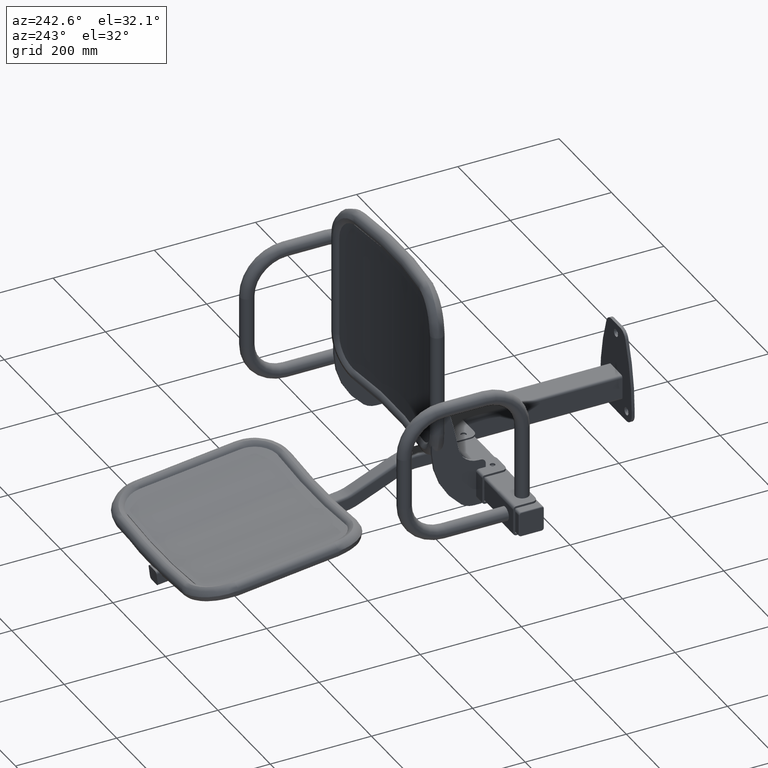
[diagram: clean part render]
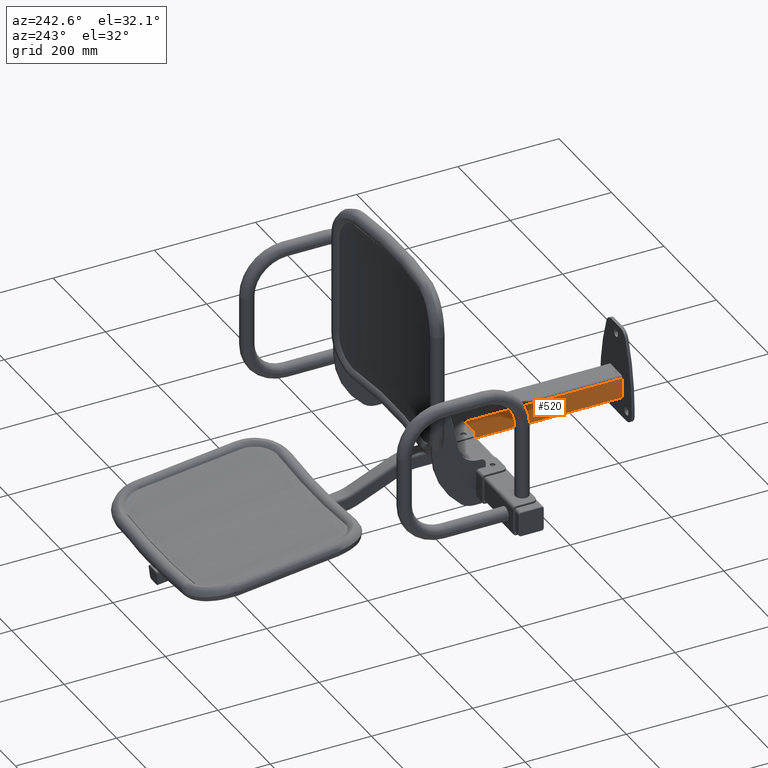
[diagram: same view with one face highlighted and labeled with its STEP entity id]
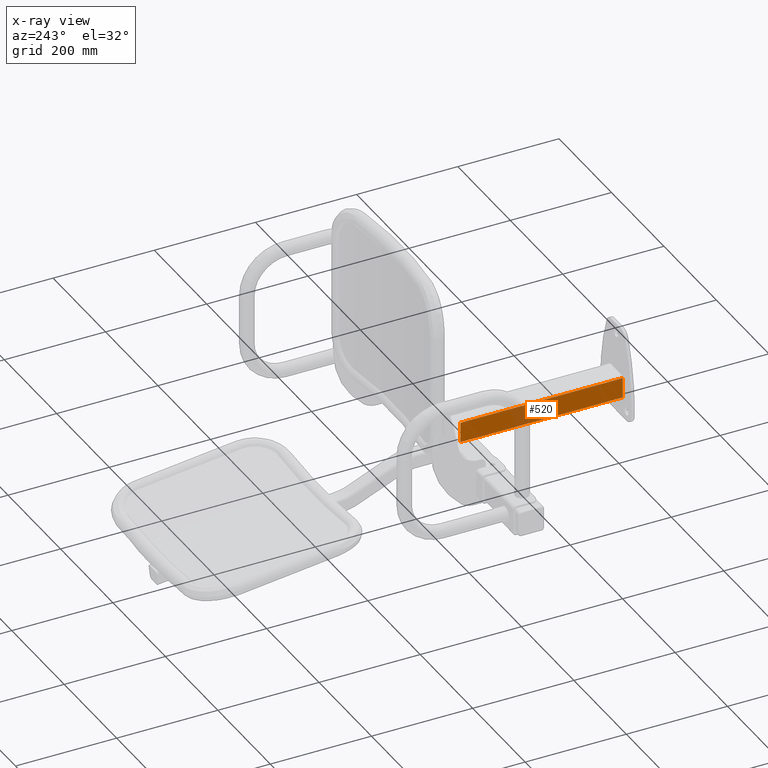
[diagram: x-ray of the same camera — body ghosted, the highlighted face saturated]
A machine part, auxiliary view. The second image highlights one B-rep face of the part: STEP entity #520.
The next image is the same camera in x-ray: the body ghosted, the highlighted face saturated — about 9% of this face is hidden behind the body in this view.
In plain terms, the highlighted planar face has unit normal (1, 0, 0).
Its self-contained STEP definition (entity closure, byte-faithful):
#520 = ADVANCED_FACE ( 'NONE', ( #1670 ), #9807, .F. ) ;
#1670 = FACE_OUTER_BOUND ( 'NONE', #11889, .T. ) ;
#2325 = EDGE_CURVE ( 'NONE', #10378, #10376, #6547, .T. ) ;
#3559 = DIRECTION ( 'NONE',  ( -0.0000000000000000000, -0.0000000000000000000, -1.000000000000000000 ) ) ;
#3564 = CARTESIAN_POINT ( 'NONE',  ( -24.99999999999996100, 6.000000000000005300, 25.00000000000000000 ) ) ;
#6547 = LINE ( 'NONE', #3564, #6562 ) ;
#6562 = VECTOR ( 'NONE', #3559, 1000.000000000000000 ) ;
#8526 = AXIS2_PLACEMENT_3D ( 'NONE', #9808, #9813, #9814 ) ;
#9564 = LINE ( 'NONE', #12646, #9573 ) ;
#9568 = LINE ( 'NONE', #12655, #9571 ) ;
#9571 = VECTOR ( 'NONE', #12657, 1000.000000000000000 ) ;
#9572 = LINE ( 'NONE', #12659, #9574 ) ;
#9573 = VECTOR ( 'NONE', #12658, 1000.000000000000000 ) ;
#9574 = VECTOR ( 'NONE', #12660, 1000.000000000000000 ) ;
#9807 = PLANE ( 'NONE',  #8526 ) ;
#9808 = CARTESIAN_POINT ( 'NONE',  ( -24.99999999999996100, 6.000000000000005300, 25.00000000000000000 ) ) ;
#9813 = DIRECTION ( 'NONE',  ( 1.000000000000000000, 0.0000000000000000000, 0.0000000000000000000 ) ) ;
#9814 = DIRECTION ( 'NONE',  ( 0.0000000000000000000, 0.0000000000000000000, -1.000000000000000000 ) ) ;
#10145 = ORIENTED_EDGE ( 'NONE', *, *, #11723, .T. ) ;
#10351 = VERTEX_POINT ( 'NONE', #14106 ) ;
#10376 = VERTEX_POINT ( 'NONE', #14131 ) ;
#10378 = VERTEX_POINT ( 'NONE', #14133 ) ;
#10433 = VERTEX_POINT ( 'NONE', #14188 ) ;
#10451 = ORIENTED_EDGE ( 'NONE', *, *, #11724, .T. ) ;
#10455 = ORIENTED_EDGE ( 'NONE', *, *, #2325, .F. ) ;
#10473 = ORIENTED_EDGE ( 'NONE', *, *, #11722, .T. ) ;
#11722 = EDGE_CURVE ( 'NONE', #10433, #10351, #9568, .T. ) ;
#11723 = EDGE_CURVE ( 'NONE', #10351, #10376, #9564, .T. ) ;
#11724 = EDGE_CURVE ( 'NONE', #10378, #10433, #9572, .T. ) ;
#11889 = EDGE_LOOP ( 'NONE', ( #10473, #10145, #10455, #10451 ) ) ;
#12646 = CARTESIAN_POINT ( 'NONE',  ( -24.99999999999996100, 6.000000000000000000, -19.99999999999999600 ) ) ;
#12655 = CARTESIAN_POINT ( 'NONE',  ( -24.99999999999996100, 326.0000000000000000, 25.00000000000000000 ) ) ;
#12657 = DIRECTION ( 'NONE',  ( -0.0000000000000000000, -0.0000000000000000000, -1.000000000000000000 ) ) ;
#12658 = DIRECTION ( 'NONE',  ( 0.0000000000000000000, -1.000000000000000000, 0.0000000000000000000 ) ) ;
#12659 = CARTESIAN_POINT ( 'NONE',  ( -24.99999999999996100, 6.000000000000005300, 20.00000000000000000 ) ) ;
#12660 = DIRECTION ( 'NONE',  ( -0.0000000000000000000, 1.000000000000000000, -0.0000000000000000000 ) ) ;
#14106 = CARTESIAN_POINT ( 'NONE',  ( -24.99999999999996100, 326.0000000000000000, -19.99999999999999600 ) ) ;
#14131 = CARTESIAN_POINT ( 'NONE',  ( -24.99999999999996100, 6.000000000000005300, -19.99999999999999600 ) ) ;
#14133 = CARTESIAN_POINT ( 'NONE',  ( -24.99999999999996100, 6.000000000000005300, 20.00000000000000000 ) ) ;
#14188 = CARTESIAN_POINT ( 'NONE',  ( -24.99999999999996100, 326.0000000000000000, 20.00000000000000400 ) ) ;